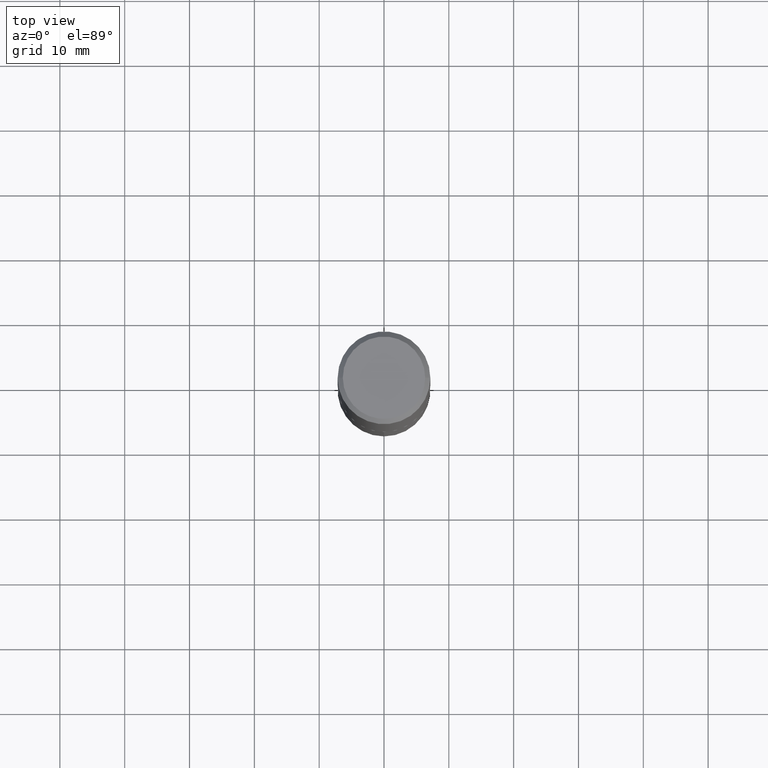
[diagram: clean part render]
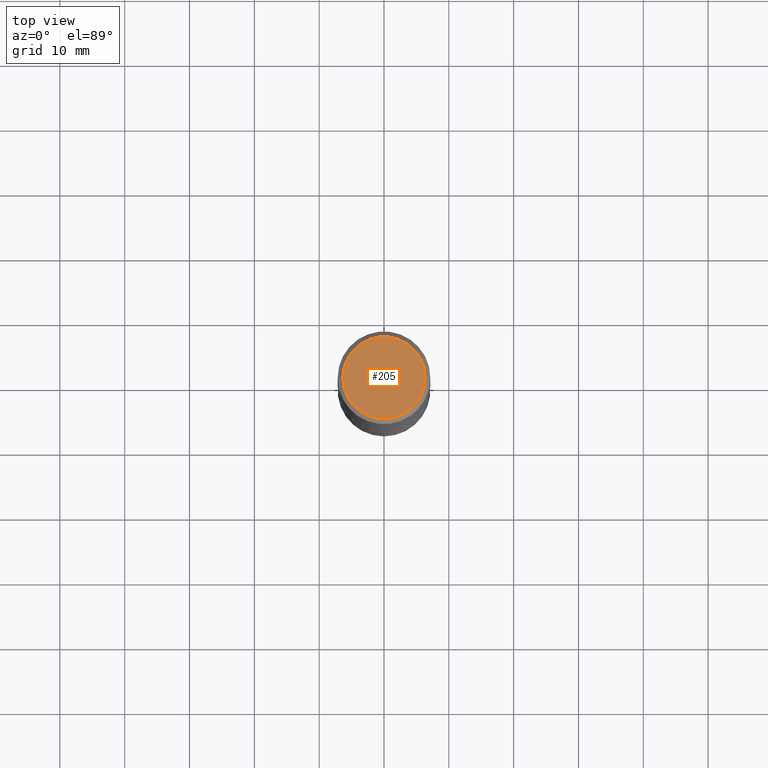
[diagram: same view with one face highlighted and labeled with its STEP entity id]
A machine part, top view. The second image highlights one B-rep face of the part: STEP entity #205.
In plain terms, the highlighted planar face has unit normal (0, -0, -1).
Its self-contained STEP definition (entity closure, byte-faithful):
#8 = CARTESIAN_POINT ( 'NONE',  ( -0.2502499999999999725, 1.802040806010411548E-15, 7.225416114845277753E-19 ) ) ;
#12 = DIRECTION ( 'NONE',  ( 2.438088387897960049E-29, -3.491481338843145188E-15, -1.000000000000000000 ) ) ;
#32 = ORIENTED_EDGE ( 'NONE', *, *, #181, .T. ) ;
#34 = CIRCLE ( 'NONE', #62, 0.2502499999999999725 ) ;
#35 = DIRECTION ( 'NONE',  ( -2.445468806185136597E-29, 3.491481338843145583E-15, 1.000000000000000000 ) ) ;
#62 = AXIS2_PLACEMENT_3D ( 'NONE', #94, #35, #236 ) ;
#94 = CARTESIAN_POINT ( 'NONE',  ( -1.766952972086504911E-47, 2.522740553079217515E-33, 7.225416114969393346E-19 ) ) ;
#124 = AXIS2_PLACEMENT_3D ( 'NONE', #204, #297, #390 ) ;
#126 = EDGE_LOOP ( 'NONE', ( #32, #143 ) ) ;
#143 = ORIENTED_EDGE ( 'NONE', *, *, #234, .T. ) ;
#145 = CARTESIAN_POINT ( 'NONE',  ( 0.2502499999999999725, -1.878589301076930179E-15, 7.225416115096182129E-19 ) ) ;
#172 = VERTEX_POINT ( 'NONE', #145 ) ;
#181 = EDGE_CURVE ( 'NONE', #231, #172, #319, .T. ) ;
#186 = DIRECTION ( 'NONE',  ( -1.000000000000000000, 6.982962677686265922E-15, -4.876176775795935793E-29 ) ) ;
#204 = CARTESIAN_POINT ( 'NONE',  ( -1.766952972086504911E-47, 2.522740553079217515E-33, 7.225416114969393346E-19 ) ) ;
#205 = ADVANCED_FACE ( 'NONE', ( #270 ), #242, .F. ) ;
#224 = AXIS2_PLACEMENT_3D ( 'NONE', #276, #12, #186 ) ;
#231 = VERTEX_POINT ( 'NONE', #8 ) ;
#234 = EDGE_CURVE ( 'NONE', #172, #231, #34, .T. ) ;
#236 = DIRECTION ( 'NONE',  ( 1.000000000000000000, -6.982962677686266711E-15, 4.876199892921953804E-29 ) ) ;
#242 = PLANE ( 'NONE',  #224 ) ;
#270 = FACE_OUTER_BOUND ( 'NONE', #126, .T. ) ;
#276 = CARTESIAN_POINT ( 'NONE',  ( -8.834764860432524555E-48, 1.261370276539608758E-33, 3.612708057484696673E-19 ) ) ;
#297 = DIRECTION ( 'NONE',  ( -2.445468806185136597E-29, 3.491481338843145583E-15, 1.000000000000000000 ) ) ;
#319 = CIRCLE ( 'NONE', #124, 0.2502499999999999725 ) ;
#390 = DIRECTION ( 'NONE',  ( 1.000000000000000000, -6.982962677686266711E-15, 4.876199892921953804E-29 ) ) ;